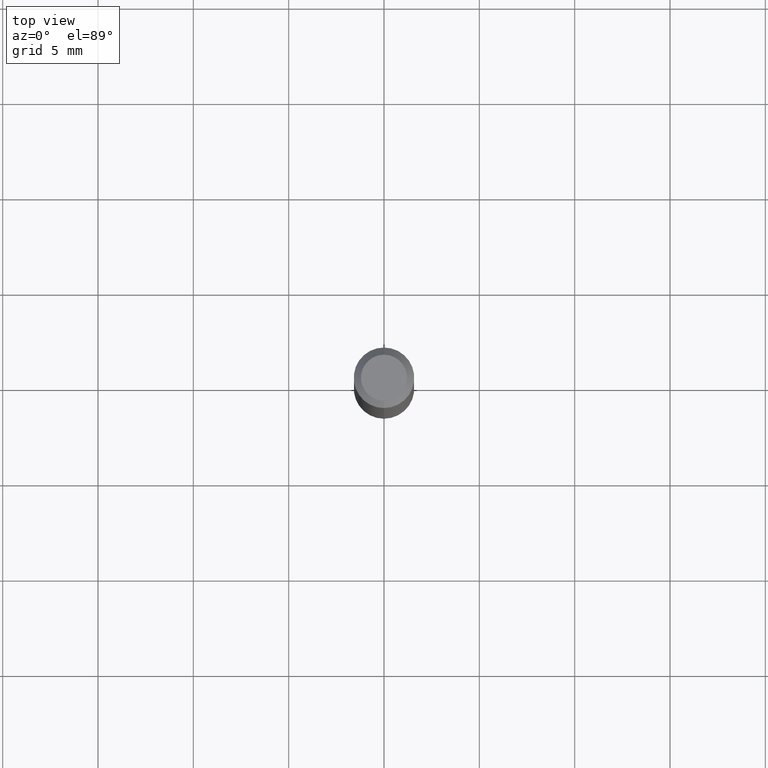
[diagram: clean part render]
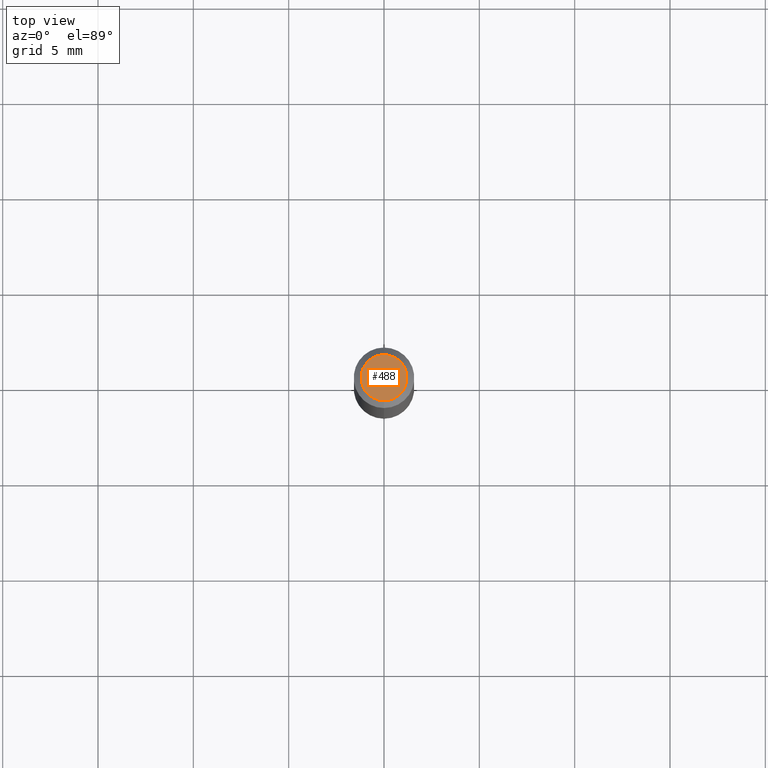
[diagram: same view with one face highlighted and labeled with its STEP entity id]
A machine part, top view. The second image highlights one B-rep face of the part: STEP entity #488.
In plain terms, the highlighted planar face has unit normal (0, -0, -1).
Its self-contained STEP definition (entity closure, byte-faithful):
#1 = CIRCLE ( 'NONE', #320, 0.04749999999999999362 ) ;
#49 = PLANE ( 'NONE',  #60 ) ;
#57 = EDGE_LOOP ( 'NONE', ( #116, #406 ) ) ;
#60 = AXIS2_PLACEMENT_3D ( 'NONE', #356, #279, #87 ) ;
#85 = AXIS2_PLACEMENT_3D ( 'NONE', #147, #257, #308 ) ;
#87 = DIRECTION ( 'NONE',  ( 6.982962677686265922E-15, 1.000000000000000000, -3.491463063711701769E-15 ) ) ;
#108 = EDGE_CURVE ( 'NONE', #297, #428, #1, .T. ) ;
#116 = ORIENTED_EDGE ( 'NONE', *, *, #376, .T. ) ;
#147 = CARTESIAN_POINT ( 'NONE',  ( 8.024794349539244775E-45, -1.145715978236695572E-30, -3.281478157809032871E-16 ) ) ;
#224 = CARTESIAN_POINT ( 'NONE',  ( -3.773273898774340269E-16, -0.04749999999999999362, -1.623033202545974501E-16 ) ) ;
#237 = CARTESIAN_POINT ( 'NONE',  ( 3.840629472727447874E-16, 0.04749999999999999362, -4.939923113072091241E-16 ) ) ;
#257 = DIRECTION ( 'NONE',  ( -2.445481567641216773E-29, 3.491463063711701769E-15, 1.000000000000000000 ) ) ;
#278 = DIRECTION ( 'NONE',  ( -6.982962677686266711E-15, -1.000000000000000000, 3.491463063711702164E-15 ) ) ;
#279 = DIRECTION ( 'NONE',  ( 2.445481567641216493E-29, -3.491463063711701769E-15, -1.000000000000000000 ) ) ;
#297 = VERTEX_POINT ( 'NONE', #224 ) ;
#308 = DIRECTION ( 'NONE',  ( -6.982962677686266711E-15, -1.000000000000000000, 3.491463063711702164E-15 ) ) ;
#320 = AXIS2_PLACEMENT_3D ( 'NONE', #434, #403, #278 ) ;
#356 = CARTESIAN_POINT ( 'NONE',  ( 3.316907271900976096E-16, 0.04749999999999999362, -3.299184034167574312E-16 ) ) ;
#376 = EDGE_CURVE ( 'NONE', #428, #297, #410, .T. ) ;
#403 = DIRECTION ( 'NONE',  ( -2.445481567641216773E-29, 3.491463063711701769E-15, 1.000000000000000000 ) ) ;
#406 = ORIENTED_EDGE ( 'NONE', *, *, #108, .T. ) ;
#410 = CIRCLE ( 'NONE', #85, 0.04749999999999999362 ) ;
#428 = VERTEX_POINT ( 'NONE', #237 ) ;
#434 = CARTESIAN_POINT ( 'NONE',  ( 8.024794349539244775E-45, -1.145715978236695572E-30, -3.281478157809032871E-16 ) ) ;
#436 = FACE_OUTER_BOUND ( 'NONE', #57, .T. ) ;
#488 = ADVANCED_FACE ( 'NONE', ( #436 ), #49, .F. ) ;